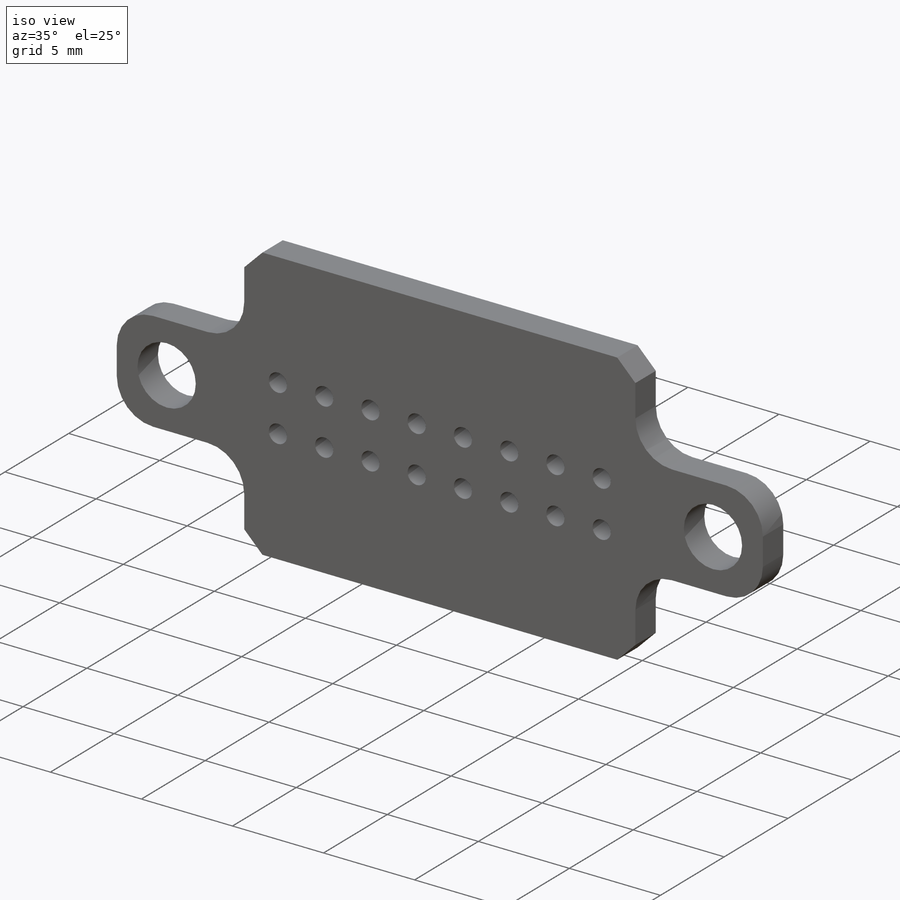
[diagram: iso view]
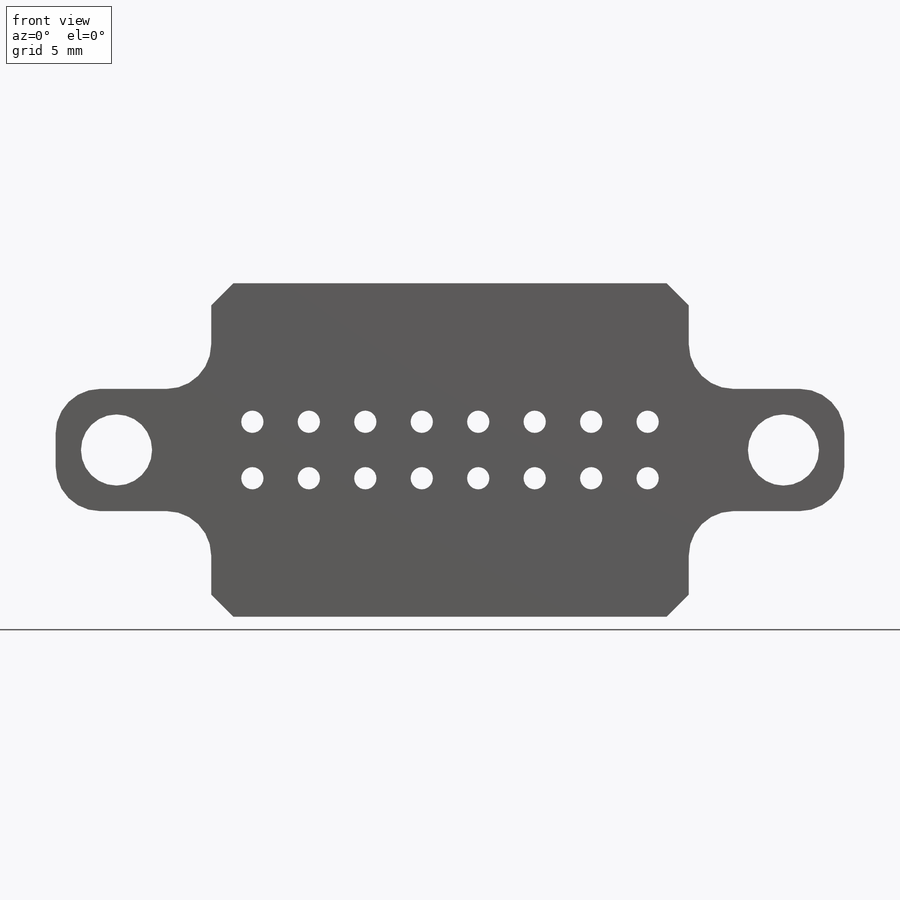
[diagram: front view]
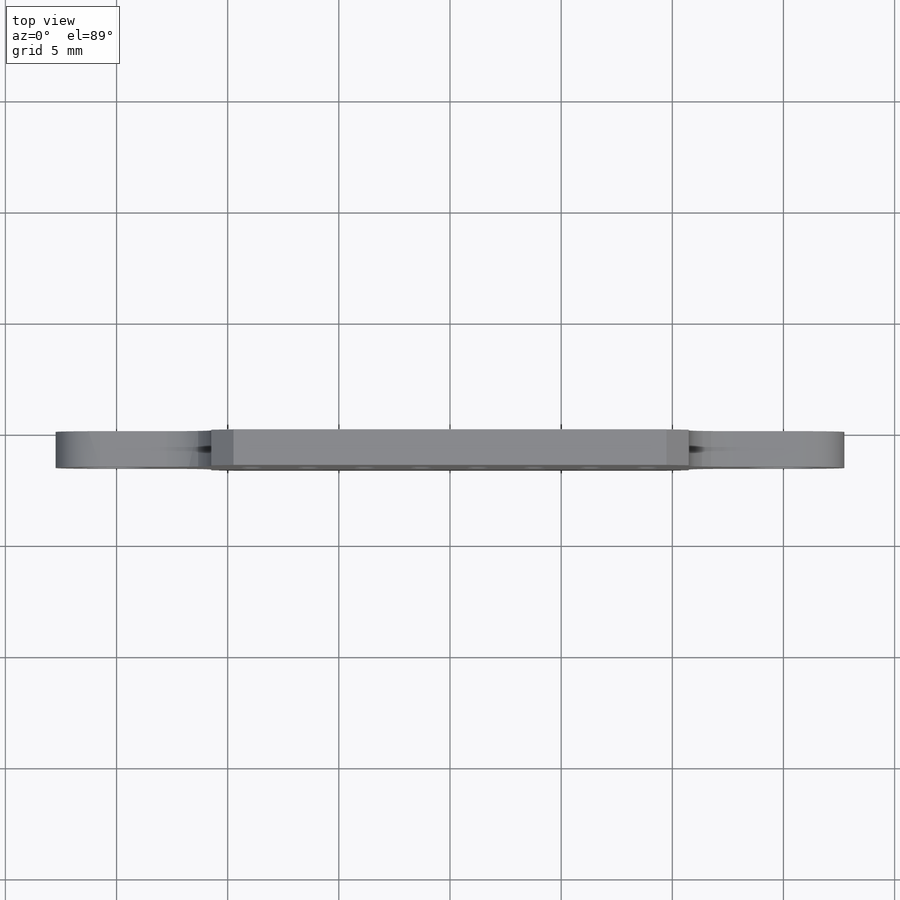
[diagram: top view]
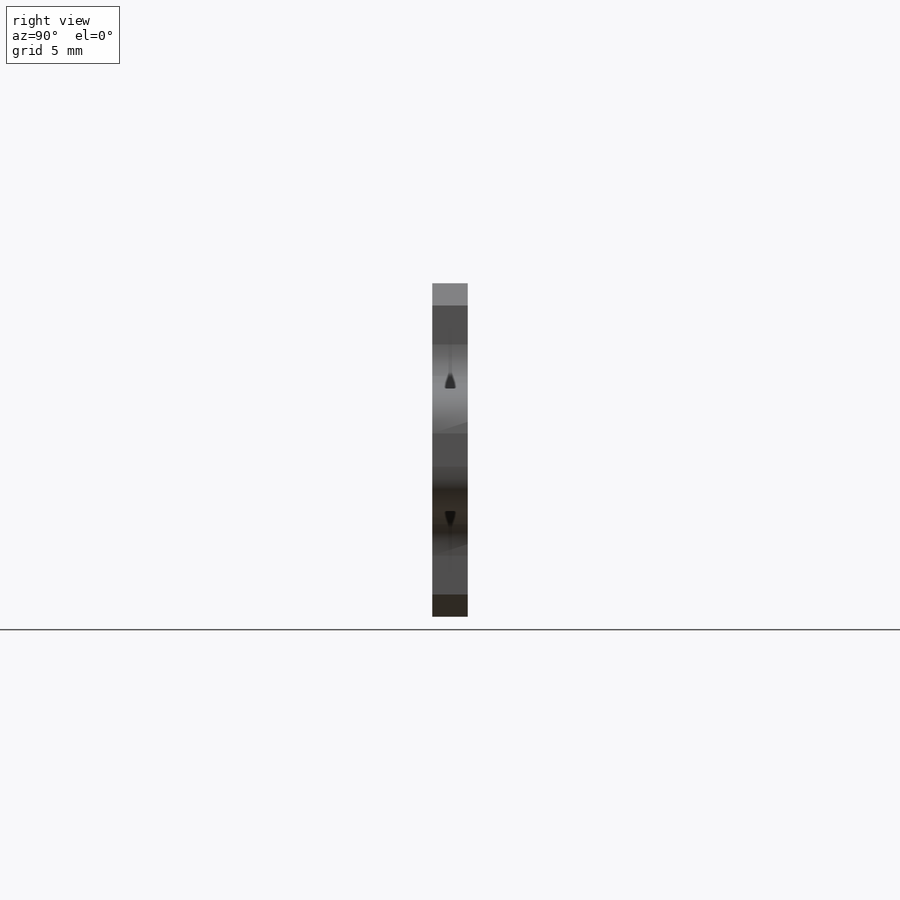
[diagram: right view]
SOLIDWORKS PART (.sldprt)
format: sldprt  version: not decoded by parser v0  size: 320,000 bytes
history: native  units: mm
features: sketch x5, material x1, extrude x1 + 1 further entry (+18 scaffold rows collapsed; 3 parser-record rows omitted)
feature tree (29):
  scaffold x18  (default folders/planes/origin — collapsed)
  material  "Material <not specified>"
  sketch  "pogo_pins-Pogo_16pin_Fixture_Reference"  dims[c1.D5=4.0mm c1.D1=30.0mm c1.D2=~137.701101mm c2.D2=90.0deg c3.D2=10.0mm c3.D3=20.32mm c3.D4=5.08mm]
  sketch  "dowel_rods-Pogo_16pin_Fixture_Reference"  dims[D1=3.8mm D2=12.0mm D3=30.0mm]
  sketch  "outer_boss-Pogo_16pin_Fixture_Reference"  dims[c1.D1=2.0mm c1.D2=40.0mm c1.D3=18.0mm c2.D2=3.0mm c2.D3=~5.385165mm c3.D3=90.0deg c4.D3=3.0mm]
  sketch  "PCB_outline-Pogo_16pin_Fixture_Reference"  dims[c1.D1=3.2mm c1.D5=3.2mm c1.D4=3.2mm c1.D3=2.0mm c1.D7=1.0mm c1.D2=15.0mm c2.D3=22.0mm c2.D4=3.0mm c2.D1=3.0mm c3.D4=3.0mm c3.D1=5.5mm c4.D4=5.0mm c4.D8=1.0mm c4.D9=1.0mm c4.D5=7.0mm c4.D6=~35.482453mm c4.D10=17.78mm c4.D11=2.54mm c4.D12=8.0 c4.D13=2.0]
  "Pogo_16pin_Fixture_Reference"
  parser-record x3  (decoder bookkeeping rows leaked as tree rows — omitted from the tree; the rows remain in map.json)
  sketch  "Sketch5"
  extrude  "Boss-Extrude1"  Depth=1.6mm
decode coverage: 5 of 6 modeling features carry decoded parameters; 1 rows unclassified (native names shown)
note: ~ marks probable driven/reference dimensions
note: suppression state not decoded; provenance and decode notes live in map.json
